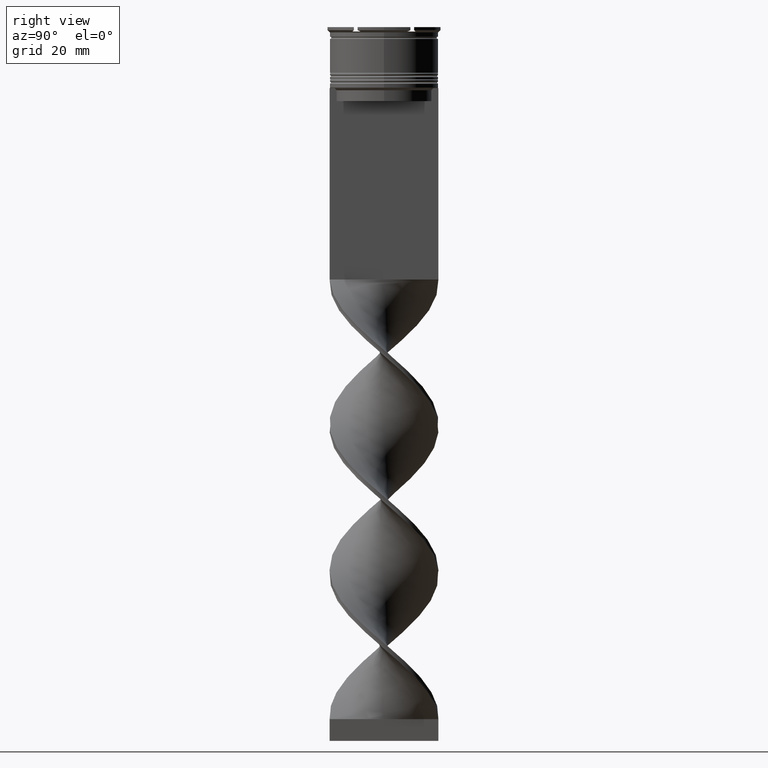
[diagram: clean part render]
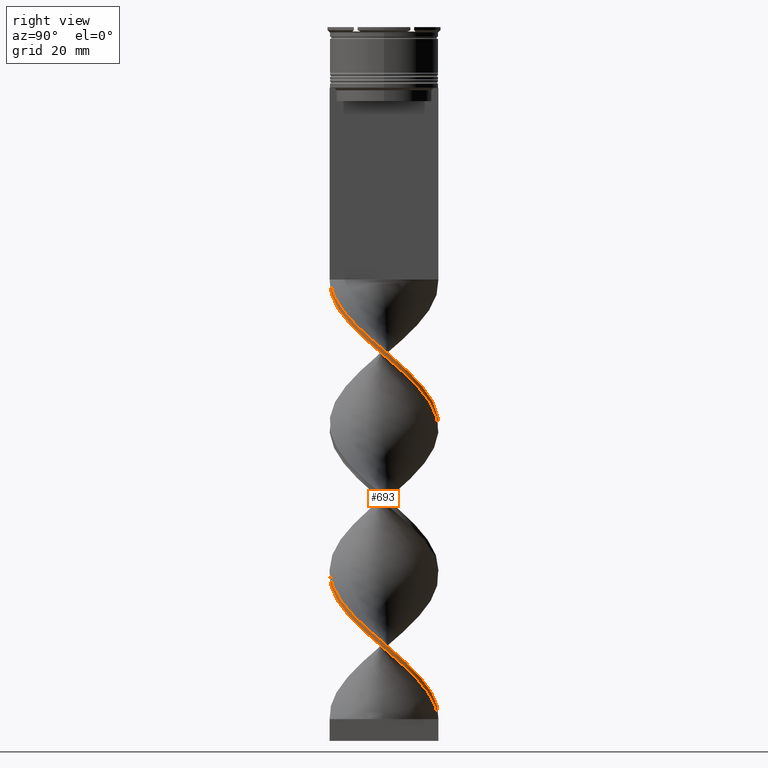
[diagram: same view with one face highlighted and labeled with its STEP entity id]
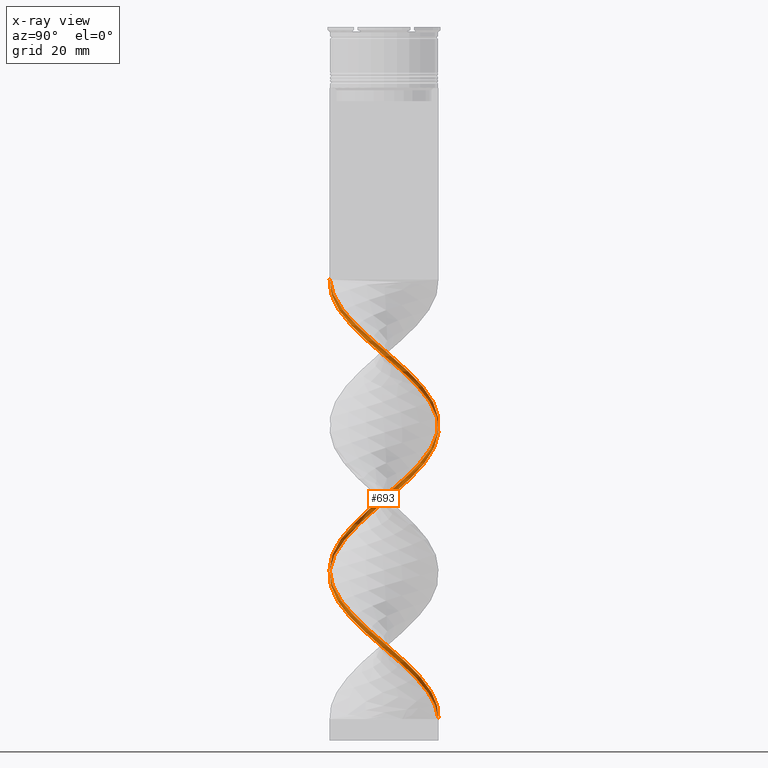
[diagram: x-ray of the same camera — body ghosted, the highlighted face saturated]
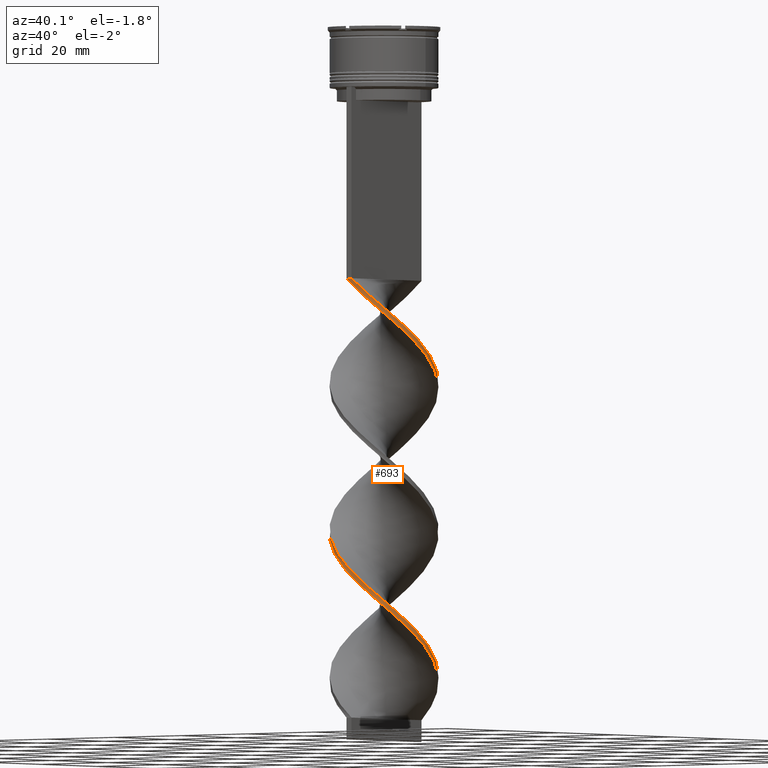
[diagram: same view with one face highlighted and labeled with its STEP entity id]
A machine part, right view. The second image highlights one B-rep face of the part: STEP entity #693.
The next image is the same camera in x-ray: the body ghosted, the highlighted face saturated — about 1% of this face is hidden behind the body in this view.
A second angle (auxiliary view) of the same face is appended — the face is thin or edge-on in the first view.
In plain terms, the highlighted face is a freeform B-spline surface patch.
Its self-contained STEP definition (entity closure, byte-faithful):
#4 = CARTESIAN_POINT ( 'NONE',  ( 12.35312734465267859, 2.052497212371872326, -75.95555555555554861 ) ) ;
#23 = CARTESIAN_POINT ( 'NONE',  ( 7.954078399437126023, 9.671873490467488566, -152.2666666666666799 ) ) ;
#30 = CARTESIAN_POINT ( 'NONE',  ( 1.865285434671642317, 12.38277877728589083, -89.42222222222223138 ) ) ;
#45 = VERTEX_POINT ( 'NONE', #186 ) ;
#47 = CARTESIAN_POINT ( 'NONE',  ( 12.13740119476140045, 3.350863215071107515, -77.07777777777778283 ) ) ;
#49 = CARTESIAN_POINT ( 'NONE',  ( 6.740552907874705291, 10.55355136890619860, -84.93333333333333712 ) ) ;
#63 = CARTESIAN_POINT ( 'NONE',  ( 6.937523532635171186, -10.50788081788356187, -63.61111111111112137 ) ) ;
#74 = CARTESIAN_POINT ( 'NONE',  ( 1.865285434671637432, -12.38277877728589260, -60.24444444444444713 ) ) ;
#82 = CARTESIAN_POINT ( 'NONE',  ( 2.063802940820955723, -12.42117182355074334, -126.4555555555555770 ) ) ;
#88 = CARTESIAN_POINT ( 'NONE',  ( 12.13740119476140045, 3.350863215071107515, -144.4111111111111541 ) ) ;
#106 = CARTESIAN_POINT ( 'NONE',  ( -1.865285434671644094, -12.38277877728589083, -123.0888888888888886 ) ) ;
#110 = CARTESIAN_POINT ( 'NONE',  ( 11.78895181437690276, -4.423280136619393232, -137.6777777777777487 ) ) ;
#119 = CARTESIAN_POINT ( 'NONE',  ( 12.45098658456435992, 1.875559948311562142, -77.07777777777778283 ) ) ;
#125 = CARTESIAN_POINT ( 'NONE',  ( -0.7499999999999986677, 12.50000000000000000, -91.66666666666667140 ) ) ;
#130 = CARTESIAN_POINT ( 'NONE',  ( -0.7499999999999986677, 12.50000000000000000, -159.0000000000000000 ) ) ;
#137 = CARTESIAN_POINT ( 'NONE',  ( 9.791158273236575837, 7.806773960377678456, -150.0222222222222115 ) ) ;
#138 = CARTESIAN_POINT ( 'NONE',  ( -4.399048945215547235, 11.72437070283936222, -96.15555555555556566 ) ) ;
#144 = CARTESIAN_POINT ( 'NONE',  ( 12.35312734465267859, 2.052497212371872326, -143.2888888888889198 ) ) ;
#152 = CARTESIAN_POINT ( 'NONE',  ( 3.166767928522319586, -12.18672937812252499, -61.36666666666666003 ) ) ;
#163 = CARTESIAN_POINT ( 'NONE',  ( 10.61168328023406460, 6.777681757703949650, -81.56666666666666288 ) ) ;
#169 = CARTESIAN_POINT ( 'NONE',  ( 0.5638029408209590532, 12.57882817644925844, -157.8777777777777942 ) ) ;
#175 = CARTESIAN_POINT ( 'NONE',  ( 7.849775853840622375, -9.845090710256195976, -133.1888888888889255 ) ) ;
#183 = CARTESIAN_POINT ( 'NONE',  ( 3.166767928522319586, -12.18672937812252322, -128.7000000000000171 ) ) ;
#186 = CARTESIAN_POINT ( 'NONE',  ( 0.7500000000000013323, 12.50000000000000000, -159.0000000000000000 ) ) ;
#192 = CARTESIAN_POINT ( 'NONE',  ( 0.5638029408209559445, -12.57882817644926021, -126.4555555555555628 ) ) ;
#201 = CARTESIAN_POINT ( 'NONE',  ( 11.78895181437690276, 4.423280136619390568, -79.32222222222222285 ) ) ;
#209 = CARTESIAN_POINT ( 'NONE',  ( 12.50992003955415832, 0.5607143693194618361, -143.2888888888889198 ) ) ;
#213 = EDGE_LOOP ( 'NONE', ( #2942, #1502, #2073, #4007 ) ) ;
#220 = CARTESIAN_POINT ( 'NONE',  ( 12.11996919947063311, 3.149420042465477021, -145.5333333333333599 ) ) ;
#228 = CARTESIAN_POINT ( 'NONE',  ( 10.61168328023406637, 6.777681757703949650, -148.8999999999999488 ) ) ;
#248 = CARTESIAN_POINT ( 'NONE',  ( -10.45031754730548101, 6.899519052838334332, -102.8888888888888857 ) ) ;
#282 = CARTESIAN_POINT ( 'NONE',  ( 0.7500000000000013323, 12.50000000000000000, -159.0000000000000000 ) ) ;
#295 = CARTESIAN_POINT ( 'NONE',  ( 12.50992003955415655, -0.5607143693194658329, -73.71111111111112280 ) ) ;
#310 = CARTESIAN_POINT ( 'NONE',  ( 0.7500000000000013323, 12.50000000000000000, -159.0000000000000000 ) ) ;
#316 = CARTESIAN_POINT ( 'NONE',  ( 7.954078399437126023, -9.671873490467488566, -64.73333333333333428 ) ) ;
#336 = CARTESIAN_POINT ( 'NONE',  ( -12.50992003955415832, 0.5607143693194728273, -107.3777777777777942 ) ) ;
#357 = CARTESIAN_POINT ( 'NONE',  ( -11.17548622105502254, -5.801146418745300792, -112.9888888888888943 ) ) ;
#362 = CARTESIAN_POINT ( 'NONE',  ( -9.791158273236570508, 7.806773960377685562, -100.6444444444444599 ) ) ;
#378 = CARTESIAN_POINT ( 'NONE',  ( -6.740552907874707067, -10.55355136890619860, -118.6000000000000085 ) ) ;
#385 = CARTESIAN_POINT ( 'NONE',  ( 0.7500000000000002220, -12.50000000000000000, -58.00000000000000000 ) ) ;
#399 = CARTESIAN_POINT ( 'NONE',  ( 3.332506835772345966, -12.07091124105925317, -60.24444444444444713 ) ) ;
#403 = CARTESIAN_POINT ( 'NONE',  ( 6.937523532635172074, -10.50788081788356187, -130.9444444444444287 ) ) ;
#419 = CARTESIAN_POINT ( 'NONE',  ( -10.45031754730548812, -6.899519052838321009, -114.1111111111111285 ) ) ;
#423 = CARTESIAN_POINT ( 'NONE',  ( -1.865285434671644094, -12.38277877728589083, -123.0888888888888886 ) ) ;
#437 = CARTESIAN_POINT ( 'NONE',  ( 2.063802940820959275, 12.42117182355074334, -90.54444444444445139 ) ) ;
#444 = CARTESIAN_POINT ( 'NONE',  ( 6.740552907874705291, 10.55355136890619860, -84.93333333333333712 ) ) ;
#449 = CARTESIAN_POINT ( 'NONE',  ( 9.791158273236570508, -7.806773960377682009, -134.3111111111111313 ) ) ;
#460 = CARTESIAN_POINT ( 'NONE',  ( 11.17548622105502076, -5.801146418745307898, -70.34444444444444855 ) ) ;
#468 = CARTESIAN_POINT ( 'NONE',  ( 7.954078399437126023, -9.671873490467488566, -132.0666666666666629 ) ) ;
#472 = CARTESIAN_POINT ( 'NONE',  ( -3.166767928522322251, -12.18672937812252499, -121.9666666666666544 ) ) ;
#478 = CARTESIAN_POINT ( 'NONE',  ( 3.332506835772350406, 12.07091124105925140, -156.7555555555555600 ) ) ;
#479 = CARTESIAN_POINT ( 'NONE',  ( 10.45031754730548279, -6.899519052838330779, -69.22222222222222854 ) ) ;
#489 = CARTESIAN_POINT ( 'NONE',  ( -4.399048945215561446, -11.72437070283935689, -120.8444444444444485 ) ) ;
#501 = CARTESIAN_POINT ( 'NONE',  ( 0.5638029408209559445, -12.57882817644925844, -126.4555555555555770 ) ) ;
#511 = CARTESIAN_POINT ( 'NONE',  ( -12.50992003955415832, -0.5607143693194575063, -109.6222222222222342 ) ) ;
#521 = CARTESIAN_POINT ( 'NONE',  ( -12.13740119476139867, 3.350863215071115508, -106.2555555555555742 ) ) ;
#529 = CARTESIAN_POINT ( 'NONE',  ( 8.787462363698281820, -8.921491198593773930, -134.3111111111111313 ) ) ;
#537 = CARTESIAN_POINT ( 'NONE',  ( 12.56885349454395495, -0.7541312096726379144, -142.1666666666666856 ) ) ;
#547 = CARTESIAN_POINT ( 'NONE',  ( 6.740552907874703514, -10.55355136890619860, -132.0666666666666629 ) ) ;
#570 = CARTESIAN_POINT ( 'NONE',  ( -11.78895181437690454, -4.423280136619386127, -112.9888888888888943 ) ) ;
#587 = CARTESIAN_POINT ( 'NONE',  ( -2.063802940820966381, -12.42117182355074334, -124.2111111111111370 ) ) ;
#605 = CARTESIAN_POINT ( 'NONE',  ( 4.399048945215554340, 11.72437070283936045, -87.17777777777779136 ) ) ;
#626 = CARTESIAN_POINT ( 'NONE',  ( 3.332506835772350406, 12.07091124105925140, -156.7555555555555600 ) ) ;
#627 = CARTESIAN_POINT ( 'NONE',  ( 2.063802940820955723, -12.42117182355074334, -59.12222222222222712 ) ) ;
#632 = CARTESIAN_POINT ( 'NONE',  ( -11.78895181437689743, 4.423280136619401226, -104.0111111111111200 ) ) ;
#653 = CARTESIAN_POINT ( 'NONE',  ( 8.787462363698287149, 8.921491198593770378, -82.68888888888889710 ) ) ;
#666 = CARTESIAN_POINT ( 'NONE',  ( 4.601210730723736653, -11.72065065856775767, -61.36666666666666003 ) ) ;
#670 = CARTESIAN_POINT ( 'NONE',  ( -12.56885349454395495, -0.7541312096726353609, -108.5000000000000000 ) ) ;
#689 = CARTESIAN_POINT ( 'NONE',  ( 9.725148873555948370, 7.997891686931350108, -81.56666666666666288 ) ) ;
#693 = ADVANCED_FACE ( 'NONE', ( #3245 ), #987, .T. ) ;
#712 = CARTESIAN_POINT ( 'NONE',  ( 12.45098658456436169, -1.875559948311565694, -72.58888888888890278 ) ) ;
#714 = CARTESIAN_POINT ( 'NONE',  ( 11.20031754730548457, 5.600480947161669221, -80.44444444444445708 ) ) ;
#727 = CARTESIAN_POINT ( 'NONE',  ( 6.937523532635171186, -10.50788081788356187, -130.9444444444444571 ) ) ;
#731 = CARTESIAN_POINT ( 'NONE',  ( -8.787462363698288925, -8.921491198593770378, -116.3555555555555685 ) ) ;
#750 = CARTESIAN_POINT ( 'NONE',  ( 11.65644370790820972, 4.576004816908207928, -78.20000000000000284 ) ) ;
#754 = CARTESIAN_POINT ( 'NONE',  ( 0.5638029408209559445, -12.57882817644926021, -59.12222222222222712 ) ) ;
#769 = CARTESIAN_POINT ( 'NONE',  ( -6.937523532635175627, -10.50788081788355832, -119.7222222222222143 ) ) ;
#781 = CARTESIAN_POINT ( 'NONE',  ( 11.65644370790820794, -4.576004816908208817, -71.46666666666668277 ) ) ;
#790 = CARTESIAN_POINT ( 'NONE',  ( -3.166767928522318254, 12.18672937812252499, -95.03333333333331723 ) ) ;
#796 = CARTESIAN_POINT ( 'NONE',  ( 9.725148873555946594, 7.997891686931350996, -148.8999999999999488 ) ) ;
#805 = CARTESIAN_POINT ( 'NONE',  ( 9.791158273236575837, 7.806773960377678456, -82.68888888888889710 ) ) ;
#817 = CARTESIAN_POINT ( 'NONE',  ( 11.17548622105502254, -5.801146418745307010, -137.6777777777777487 ) ) ;
#830 = CARTESIAN_POINT ( 'NONE',  ( 12.13740119476140045, -3.350863215071111068, -72.58888888888890278 ) ) ;
#835 = CARTESIAN_POINT ( 'NONE',  ( 11.78895181437690276, -4.423280136619393232, -137.6777777777777487 ) ) ;
#841 = CARTESIAN_POINT ( 'NONE',  ( 5.769367131679455696, 11.11426573822565977, -87.17777777777779136 ) ) ;
#850 = CARTESIAN_POINT ( 'NONE',  ( -11.78895181437690454, -4.423280136619386127, -112.9888888888888943 ) ) ;
#859 = CARTESIAN_POINT ( 'NONE',  ( 5.631329961908785542, -11.26201202755620123, -130.9444444444444287 ) ) ;
#867 = CARTESIAN_POINT ( 'NONE',  ( 12.11996919947063134, -3.149420042465478353, -71.46666666666668277 ) ) ;
#869 = CARTESIAN_POINT ( 'NONE',  ( 12.35312734465267681, -2.052497212371875435, -141.0444444444444514 ) ) ;
#879 = CARTESIAN_POINT ( 'NONE',  ( -9.791158273236577614, -7.806773960377676680, -116.3555555555555685 ) ) ;
#902 = CARTESIAN_POINT ( 'NONE',  ( -8.970633266239085302, -8.835866163051408151, -117.4777777777777885 ) ) ;
#912 = CARTESIAN_POINT ( 'NONE',  ( 0.7500000000000002220, -12.50000000000000000, -58.00000000000000000 ) ) ;
#939 = CARTESIAN_POINT ( 'NONE',  ( -3.332506835772342857, 12.07091124105925317, -93.91111111111111143 ) ) ;
#963 = CARTESIAN_POINT ( 'NONE',  ( 4.601210730723737541, -11.72065065856775945, -61.36666666666666003 ) ) ;
#980 = CARTESIAN_POINT ( 'NONE',  ( -5.769367131679449479, 11.11426573822566333, -96.15555555555556566 ) ) ;
#987 =( BOUNDED_SURFACE ( )  B_SPLINE_SURFACE ( 1, 2, ( 
 ( #385, #1602, #2447, #963, #2524, #1648, #316, #2199, #2923, #1584, #3219, #3730, #867, #2573, #295, #3805, #4, #2880, #2126, #1005, #3515, #3490, #653, #1265, #49, #2858, #605, #2548, #30, #3827, #1870, #3153, #939, #1290, #1569, #2835, #1630, #1911, #362, #3197, #3534, #632, #1895, #3853, #336, #670, #1930, #2905, #1311, #2591, #3877, #2266, #731, #3939, #2985, #3283, #489, #472, #423, #1977, #2692, #2608, #3263, #2966, #2353, #403, #3003, #1062, #449, #1665, #1689, #110, #3644, #3664, #1712, #1329, #2324, #88, #2374, #1992, #1043, #796, #1375, #2036, #2055, #3027, #1398, #2943, #1351, #2647, #130 ),
 ( #2307, #754, #2013, #152, #3309, #3344, #2668, #3960, #1083, #1750, #3898, #2627, #781, #1025, #2289, #1730, #1417, #3986, #1107, #3578, #714, #3921, #3597, #2481, #1124, #3741, #841, #3722, #4004, #1830, #3389, #2752, #1786, #2098, #1479, #3113, #2414, #1520, #4046, #3763, #248, #2786, #3372, #4081, #1809, #1167, #511, #1769, #1503, #570, #3449, #2712, #879, #902, #3049, #1203, #2440, #2139, #2160, #587, #2731, #192, #3066, #3702, #1459, #859, #547, #175, #529, #3089, #3680, #817, #1845, #1441, #4018, #2391, #209, #2077, #3407, #1144, #2119, #228, #2772, #4066, #1184, #2459, #3430, #1579, #626, #3800, #310 ) ),
 .UNSPECIFIED., .F., .F., .T. ) 
 B_SPLINE_SURFACE_WITH_KNOTS ( ( 2, 2 ),
 ( 3, 2, 2, 2, 2, 2, 2, 2, 2, 2, 2, 2, 2, 2, 2, 2, 2, 2, 2, 2, 2, 2, 2, 2, 2, 2, 2, 2, 2, 2, 2, 2, 2, 2, 2, 2, 2, 2, 2, 2, 2, 2, 2, 2, 2, 3 ),
 ( 0.000000000000000000, 1.000000000000000000 ),
 ( 0.000000000000000000, 0.01666666666666666644, 0.03333333333333333287, 0.05000000000000000278, 0.06666666666666666574, 0.08333333333333332871, 0.1000000000000000056, 0.1166666666666666685, 0.1333333333333333315, 0.1499999999999999944, 0.1666666666666666574, 0.1833333333333333204, 0.2000000000000000111, 0.2166666666666666741, 0.2333333333333333370, 0.2500000000000000000, 0.2666666666666666630, 0.2833333333333333259, 0.2999999999999999889, 0.3166666666666666519, 0.3333333333333333148, 0.3499999999999999778, 0.3666666666666666408, 0.3833333333333333592, 0.4000000000000000222, 0.4166666666666666852, 0.4333333333333333481, 0.4500000000000000111, 0.4666666666666666741, 0.4833333333333333370, 0.5000000000000000000, 0.5166666666666667185, 0.5333333333333333259, 0.5500000000000000444, 0.5666666666666666519, 0.5833333333333333703, 0.5999999999999999778, 0.6166666666666666963, 0.6333333333333333037, 0.6500000000000000222, 0.6666666666666666297, 0.6833333333333333481, 0.6999999999999999556, 0.7166666666666666741, 0.7333333333333332815, 0.7500000000000000000 ),
 .UNSPECIFIED. ) 
 GEOMETRIC_REPRESENTATION_ITEM ( )  RATIONAL_B_SPLINE_SURFACE ( (
 ( 1.000000000000000000, 0.9945218953682732899, 1.000000000000000000, 0.9945218953682732899, 1.000000000000000000, 0.9945218953682732899, 1.000000000000000000, 0.9945218953682732899, 1.000000000000000000, 0.9945218953682732899, 1.000000000000000000, 0.9945218953682732899, 1.000000000000000000, 0.9945218953682732899, 1.000000000000000000, 0.9945218953682732899, 1.000000000000000000, 0.9945218953682732899, 1.000000000000000000, 0.9945218953682732899, 1.000000000000000000, 0.9945218953682732899, 1.000000000000000000, 0.9945218953682732899, 1.000000000000000000, 0.9945218953682732899, 1.000000000000000000, 0.9945218953682732899, 1.000000000000000000, 0.9945218953682732899, 1.000000000000000000, 0.9945218953682732899, 1.000000000000000000, 0.9945218953682732899, 1.000000000000000000, 0.9945218953682732899, 1.000000000000000000, 0.9945218953682732899, 1.000000000000000000, 0.9945218953682732899, 1.000000000000000000, 0.9945218953682732899, 1.000000000000000000, 0.9945218953682732899, 1.000000000000000000, 0.9945218953682732899, 1.000000000000000000, 0.9945218953682732899, 1.000000000000000000, 0.9945218953682732899, 1.000000000000000000, 0.9945218953682732899, 1.000000000000000000, 0.9945218953682732899, 1.000000000000000000, 0.9945218953682732899, 1.000000000000000000, 0.9945218953682732899, 1.000000000000000000, 0.9945218953682732899, 1.000000000000000000, 0.9945218953682732899, 1.000000000000000000, 0.9945218953682732899, 1.000000000000000000, 0.9945218953682732899, 1.000000000000000000, 0.9945218953682732899, 1.000000000000000000, 0.9945218953682732899, 1.000000000000000000, 0.9945218953682732899, 1.000000000000000000, 0.9945218953682732899, 1.000000000000000000, 0.9945218953682732899, 1.000000000000000000, 0.9945218953682732899, 1.000000000000000000, 0.9945218953682732899, 1.000000000000000000, 0.9945218953682732899, 1.000000000000000000, 0.9945218953682732899, 1.000000000000000000, 0.9945218953682732899, 1.000000000000000000, 0.9945218953682732899, 1.000000000000000000, 0.9945218953682732899, 1.000000000000000000),
 ( 1.000000000000000000, 0.9945218953682732899, 1.000000000000000000, 0.9945218953682732899, 1.000000000000000000, 0.9945218953682732899, 1.000000000000000000, 0.9945218953682732899, 1.000000000000000000, 0.9945218953682732899, 1.000000000000000000, 0.9945218953682732899, 1.000000000000000000, 0.9945218953682732899, 1.000000000000000000, 0.9945218953682732899, 1.000000000000000000, 0.9945218953682732899, 1.000000000000000000, 0.9945218953682732899, 1.000000000000000000, 0.9945218953682732899, 1.000000000000000000, 0.9945218953682732899, 1.000000000000000000, 0.9945218953682732899, 1.000000000000000000, 0.9945218953682732899, 1.000000000000000000, 0.9945218953682732899, 1.000000000000000000, 0.9945218953682732899, 1.000000000000000000, 0.9945218953682732899, 1.000000000000000000, 0.9945218953682732899, 1.000000000000000000, 0.9945218953682732899, 1.000000000000000000, 0.9945218953682732899, 1.000000000000000000, 0.9945218953682732899, 1.000000000000000000, 0.9945218953682732899, 1.000000000000000000, 0.9945218953682732899, 1.000000000000000000, 0.9945218953682732899, 1.000000000000000000, 0.9945218953682732899, 1.000000000000000000, 0.9945218953682732899, 1.000000000000000000, 0.9945218953682732899, 1.000000000000000000, 0.9945218953682732899, 1.000000000000000000, 0.9945218953682732899, 1.000000000000000000, 0.9945218953682732899, 1.000000000000000000, 0.9945218953682732899, 1.000000000000000000, 0.9945218953682732899, 1.000000000000000000, 0.9945218953682732899, 1.000000000000000000, 0.9945218953682732899, 1.000000000000000000, 0.9945218953682732899, 1.000000000000000000, 0.9945218953682732899, 1.000000000000000000, 0.9945218953682732899, 1.000000000000000000, 0.9945218953682732899, 1.000000000000000000, 0.9945218953682732899, 1.000000000000000000, 0.9945218953682732899, 1.000000000000000000, 0.9945218953682732899, 1.000000000000000000, 0.9945218953682732899, 1.000000000000000000, 0.9945218953682732899, 1.000000000000000000, 0.9945218953682732899, 1.000000000000000000, 0.9945218953682732899, 1.000000000000000000) ) ) 
 REPRESENTATION_ITEM ( '' )  SURFACE ( )  );
#989 = LINE ( 'NONE', #912, #1886 ) ;
#1001 = CARTESIAN_POINT ( 'NONE',  ( -10.61168328023406460, 6.777681757703952314, -101.7666666666666515 ) ) ;
#1005 = CARTESIAN_POINT ( 'NONE',  ( 11.17548622105502254, 5.801146418745304345, -79.32222222222222285 ) ) ;
#1022 = CARTESIAN_POINT ( 'NONE',  ( -6.937523532635168522, 10.50788081788356365, -97.27777777777779988 ) ) ;
#1025 = CARTESIAN_POINT ( 'NONE',  ( 12.13740119476140045, -3.350863215071111068, -72.58888888888890278 ) ) ;
#1039 = CARTESIAN_POINT ( 'NONE',  ( -4.399048945215561446, -11.72437070283935689, -120.8444444444444485 ) ) ;
#1043 = CARTESIAN_POINT ( 'NONE',  ( 10.45031754730548457, 6.899519052838327227, -147.7777777777777715 ) ) ;
#1056 = CARTESIAN_POINT ( 'NONE',  ( 12.56885349454395495, 0.7541312096726368042, -74.83333333333332860 ) ) ;
#1062 = CARTESIAN_POINT ( 'NONE',  ( 8.970633266239079973, -8.835866163051415256, -133.1888888888889255 ) ) ;
#1070 = CARTESIAN_POINT ( 'NONE',  ( -7.954078399437126912, -9.671873490467486789, -118.6000000000000085 ) ) ;
#1071 = VERTEX_POINT ( 'NONE', #3614 ) ;
#1078 = CARTESIAN_POINT ( 'NONE',  ( 9.791158273236570508, -7.806773960377682009, -134.3111111111111313 ) ) ;
#1083 = CARTESIAN_POINT ( 'NONE',  ( 8.787462363698281820, -8.921491198593773930, -66.97777777777777430 ) ) ;
#1095 = CARTESIAN_POINT ( 'NONE',  ( 6.937523532635174739, 10.50788081788355832, -153.3888888888889142 ) ) ;
#1096 = CARTESIAN_POINT ( 'NONE',  ( 11.20031754730548457, 5.600480947161669221, -80.44444444444445708 ) ) ;
#1107 = CARTESIAN_POINT ( 'NONE',  ( 12.11996919947063311, 3.149420042465477021, -78.20000000000000284 ) ) ;
#1115 = CARTESIAN_POINT ( 'NONE',  ( -12.56885349454395495, 0.7541312096726393577, -108.5000000000000000 ) ) ;
#1124 = CARTESIAN_POINT ( 'NONE',  ( 7.954078399437126023, 9.671873490467488566, -84.93333333333333712 ) ) ;
#1132 = CARTESIAN_POINT ( 'NONE',  ( 6.740552907874703514, -10.55355136890619860, -132.0666666666666629 ) ) ;
#1144 = CARTESIAN_POINT ( 'NONE',  ( 11.78895181437690276, 4.423280136619390568, -146.6555555555555657 ) ) ;
#1155 = CARTESIAN_POINT ( 'NONE',  ( -5.631329961908782877, 11.26201202755620479, -97.27777777777779988 ) ) ;
#1159 = CARTESIAN_POINT ( 'NONE',  ( 8.970633266239079973, -8.835866163051415256, -133.1888888888889255 ) ) ;
#1167 = CARTESIAN_POINT ( 'NONE',  ( -12.56885349454395495, 0.7541312096726394687, -108.5000000000000000 ) ) ;
#1176 = CARTESIAN_POINT ( 'NONE',  ( 11.78895181437690276, 4.423280136619390568, -146.6555555555555657 ) ) ;
#1178 = B_SPLINE_CURVE_WITH_KNOTS ( 'NONE', 3,
 ( #3781, #4124, #2174, #282 ),
 .UNSPECIFIED., .F., .F.,
 ( 4, 4 ),
 ( 0.000000000000000000, 1.000000000000000000 ),
 .UNSPECIFIED. ) ;
#1184 = CARTESIAN_POINT ( 'NONE',  ( 7.954078399437126023, 9.671873490467488566, -152.2666666666666799 ) ) ;
#1203 = CARTESIAN_POINT ( 'NONE',  ( -6.937523532635176515, -10.50788081788355832, -119.7222222222222143 ) ) ;
#1265 = CARTESIAN_POINT ( 'NONE',  ( 7.849775853840625039, 9.845090710256194200, -83.81111111111111711 ) ) ;
#1290 = CARTESIAN_POINT ( 'NONE',  ( -4.601210730723735765, 11.72065065856776123, -95.03333333333331723 ) ) ;
#1299 = EDGE_CURVE ( 'NONE', #1532, #45, #1178, .T. ) ;
#1308 = CARTESIAN_POINT ( 'NONE',  ( -2.063802940820951726, 12.42117182355074689, -92.78888888888889142 ) ) ;
#1311 = CARTESIAN_POINT ( 'NONE',  ( -11.65644370790820972, -4.576004816908206152, -111.8666666666666742 ) ) ;
#1325 = CARTESIAN_POINT ( 'NONE',  ( -0.5638029408209662696, -12.57882817644925844, -124.2111111111111370 ) ) ;
#1329 = CARTESIAN_POINT ( 'NONE',  ( 12.56885349454395495, 0.7541312096726368042, -142.1666666666666856 ) ) ;
#1338 = CARTESIAN_POINT ( 'NONE',  ( 3.166767928522319586, -12.18672937812252322, -61.36666666666666003 ) ) ;
#1345 = CARTESIAN_POINT ( 'NONE',  ( 3.332506835772345966, -12.07091124105925317, -127.5777777777777828 ) ) ;
#1351 = CARTESIAN_POINT ( 'NONE',  ( 1.865285434671642317, 12.38277877728589083, -156.7555555555555600 ) ) ;
#1371 = CARTESIAN_POINT ( 'NONE',  ( 1.865285434671642317, 12.38277877728589083, -89.42222222222223138 ) ) ;
#1375 = CARTESIAN_POINT ( 'NONE',  ( 8.787462363698287149, 8.921491198593770378, -150.0222222222222115 ) ) ;
#1386 = CARTESIAN_POINT ( 'NONE',  ( -10.61168328023406637, -6.777681757703947873, -115.2333333333333343 ) ) ;
#1394 = CARTESIAN_POINT ( 'NONE',  ( -12.56885349454395495, -0.7541312096726352499, -108.5000000000000000 ) ) ;
#1398 = CARTESIAN_POINT ( 'NONE',  ( 4.399048945215554340, 11.72437070283936045, -154.5111111111111200 ) ) ;
#1407 = CARTESIAN_POINT ( 'NONE',  ( 8.970633266239079973, 8.835866163051411704, -151.1444444444444457 ) ) ;
#1408 = CARTESIAN_POINT ( 'NONE',  ( -8.787462363698281820, 8.921491198593777483, -100.6444444444444599 ) ) ;
#1417 = CARTESIAN_POINT ( 'NONE',  ( 12.50992003955415832, 0.5607143693194618361, -75.95555555555554861 ) ) ;
#1428 = CARTESIAN_POINT ( 'NONE',  ( 11.20031754730548457, 5.600480947161669221, -147.7777777777777715 ) ) ;
#1429 = CARTESIAN_POINT ( 'NONE',  ( -11.65644370790820794, 4.576004816908209705, -105.1333333333333400 ) ) ;
#1435 = CARTESIAN_POINT ( 'NONE',  ( 11.20031754730548279, -5.600480947161672773, -136.5555555555555713 ) ) ;
#1441 = CARTESIAN_POINT ( 'NONE',  ( 12.13740119476140045, -3.350863215071111068, -139.9222222222222172 ) ) ;
#1450 = CARTESIAN_POINT ( 'NONE',  ( 4.399048945215551676, -11.72437070283936222, -129.8222222222222229 ) ) ;
#1459 = CARTESIAN_POINT ( 'NONE',  ( 4.399048945215551676, -11.72437070283936222, -129.8222222222222229 ) ) ;
#1468 = CARTESIAN_POINT ( 'NONE',  ( -1.865285434671634324, 12.38277877728589260, -93.91111111111111143 ) ) ;
#1472 = CARTESIAN_POINT ( 'NONE',  ( 12.45098658456436169, -1.875559948311565694, -139.9222222222222172 ) ) ;
#1479 = CARTESIAN_POINT ( 'NONE',  ( -4.399048945215547235, 11.72437070283936222, -96.15555555555556566 ) ) ;
#1490 = CARTESIAN_POINT ( 'NONE',  ( 12.45098658456435992, 1.875559948311562142, -144.4111111111111256 ) ) ;
#1502 = ORIENTED_EDGE ( 'NONE', *, *, #4118, .T. ) ;
#1503 = CARTESIAN_POINT ( 'NONE',  ( -12.11996919947063311, -3.149420042465475689, -111.8666666666666742 ) ) ;
#1520 = CARTESIAN_POINT ( 'NONE',  ( -7.849775853840618822, 9.845090710256195976, -99.52222222222223991 ) ) ;
#1532 = VERTEX_POINT ( 'NONE', #1861 ) ;
#1569 = CARTESIAN_POINT ( 'NONE',  ( -5.769367131679449479, 11.11426573822566333, -96.15555555555556566 ) ) ;
#1579 = CARTESIAN_POINT ( 'NONE',  ( 4.601210730723739317, 11.72065065856775945, -155.6333333333333258 ) ) ;
#1584 = CARTESIAN_POINT ( 'NONE',  ( 10.61168328023406815, -6.777681757703950538, -68.10000000000002274 ) ) ;
#1602 = CARTESIAN_POINT ( 'NONE',  ( 2.063802940820956167, -12.42117182355074334, -59.12222222222222712 ) ) ;
#1623 = CARTESIAN_POINT ( 'NONE',  ( -9.725148873555948370, -7.997891686931350108, -115.2333333333333343 ) ) ;
#1630 = CARTESIAN_POINT ( 'NONE',  ( -7.954078399437124247, 9.671873490467490342, -98.40000000000001990 ) ) ;
#1644 = CARTESIAN_POINT ( 'NONE',  ( 9.791158273236570508, -7.806773960377682009, -66.97777777777777430 ) ) ;
#1648 = CARTESIAN_POINT ( 'NONE',  ( 6.937523532635172074, -10.50788081788356187, -63.61111111111111427 ) ) ;
#1661 = CARTESIAN_POINT ( 'NONE',  ( -5.631329961908790871, -11.26201202755619946, -119.7222222222222143 ) ) ;
#1665 = CARTESIAN_POINT ( 'NONE',  ( 10.61168328023406815, -6.777681757703950538, -135.4333333333333371 ) ) ;
#1683 = CARTESIAN_POINT ( 'NONE',  ( -8.970633266239076420, 8.835866163051417033, -99.52222222222223991 ) ) ;
#1689 = CARTESIAN_POINT ( 'NONE',  ( 11.20031754730548279, -5.600480947161672773, -136.5555555555555713 ) ) ;
#1703 = CARTESIAN_POINT ( 'NONE',  ( -7.849775853840619710, 9.845090710256194200, -99.52222222222223991 ) ) ;
#1709 = CARTESIAN_POINT ( 'NONE',  ( -9.791158273236570508, 7.806773960377685562, -100.6444444444444599 ) ) ;
#1712 = CARTESIAN_POINT ( 'NONE',  ( 12.50992003955415655, -0.5607143693194658329, -141.0444444444444514 ) ) ;
#1719 = CARTESIAN_POINT ( 'NONE',  ( -0.5638029408209508375, 12.57882817644926199, -92.78888888888889142 ) ) ;
#1726 = CARTESIAN_POINT ( 'NONE',  ( 10.61168328023406637, -6.777681757703950538, -135.4333333333333371 ) ) ;
#1730 = CARTESIAN_POINT ( 'NONE',  ( 12.56885349454395495, -0.7541312096726379144, -74.83333333333334281 ) ) ;
#1737 = CARTESIAN_POINT ( 'NONE',  ( 6.937523532635174739, 10.50788081788355832, -86.05555555555557135 ) ) ;
#1743 = CARTESIAN_POINT ( 'NONE',  ( 12.13740119476140045, 3.350863215071107515, -144.4111111111111256 ) ) ;
#1750 = CARTESIAN_POINT ( 'NONE',  ( 9.725148873555946594, -7.997891686931353661, -68.10000000000002274 ) ) ;
#1760 = CARTESIAN_POINT ( 'NONE',  ( -12.45098658456436169, -1.875559948311554592, -110.7444444444444542 ) ) ;
#1769 = CARTESIAN_POINT ( 'NONE',  ( -12.45098658456436169, -1.875559948311554814, -110.7444444444444542 ) ) ;
#1777 = CARTESIAN_POINT ( 'NONE',  ( 6.740552907874703514, -10.55355136890619860, -64.73333333333333428 ) ) ;
#1786 = CARTESIAN_POINT ( 'NONE',  ( -1.865285434671634324, 12.38277877728589260, -93.91111111111111143 ) ) ;
#1799 = CARTESIAN_POINT ( 'NONE',  ( 11.17548622105502076, -5.801146418745307898, -137.6777777777777487 ) ) ;
#1809 = CARTESIAN_POINT ( 'NONE',  ( -12.35312734465267503, 2.052497212371882540, -107.3777777777777942 ) ) ;
#1830 = CARTESIAN_POINT ( 'NONE',  ( 2.063802940820959275, 12.42117182355074334, -90.54444444444445139 ) ) ;
#1845 = CARTESIAN_POINT ( 'NONE',  ( 11.65644370790820794, -4.576004816908208817, -138.8000000000000114 ) ) ;
#1861 = CARTESIAN_POINT ( 'NONE',  ( -0.7499999999999986677, 12.50000000000000000, -159.0000000000000000 ) ) ;
#1870 = CARTESIAN_POINT ( 'NONE',  ( -0.7499999999999986677, 12.50000000000000000, -91.66666666666667140 ) ) ;
#1886 = VECTOR ( 'NONE', #2840, 1000.000000000000000 ) ;
#1895 = CARTESIAN_POINT ( 'NONE',  ( -12.11996919947063134, 3.149420042465479241, -105.1333333333333400 ) ) ;
#1911 = CARTESIAN_POINT ( 'NONE',  ( -8.970633266239076420, 8.835866163051417033, -99.52222222222223991 ) ) ;
#1924 = CARTESIAN_POINT ( 'NONE',  ( 5.769367131679455696, 11.11426573822565977, -154.5111111111111200 ) ) ;
#1926 = CARTESIAN_POINT ( 'NONE',  ( -11.78895181437689743, 4.423280136619400338, -104.0111111111111057 ) ) ;
#1930 = CARTESIAN_POINT ( 'NONE',  ( -12.35312734465267859, -2.052497212371867885, -109.6222222222222342 ) ) ;
#1945 = VERTEX_POINT ( 'NONE', #3351 ) ;
#1950 = CARTESIAN_POINT ( 'NONE',  ( -7.849775853840630369, -9.845090710256188871, -117.4777777777777885 ) ) ;
#1966 = CARTESIAN_POINT ( 'NONE',  ( 0.5638029408209559445, -12.57882817644925844, -59.12222222222222712 ) ) ;
#1972 = CARTESIAN_POINT ( 'NONE',  ( 10.45031754730548457, 6.899519052838327227, -80.44444444444445708 ) ) ;
#1977 = CARTESIAN_POINT ( 'NONE',  ( -0.5638029408209662696, -12.57882817644926021, -124.2111111111111370 ) ) ;
#1989 = CARTESIAN_POINT ( 'NONE',  ( -12.45098658456436169, 1.875559948311569913, -106.2555555555555742 ) ) ;
#1992 = CARTESIAN_POINT ( 'NONE',  ( 11.17548622105502254, 5.801146418745304345, -146.6555555555555657 ) ) ;
#2001 = CARTESIAN_POINT ( 'NONE',  ( 0.7500000000000013323, 12.50000000000000000, -159.0000000000000000 ) ) ;
#2009 = CARTESIAN_POINT ( 'NONE',  ( 8.787462363698287149, 8.921491198593770378, -82.68888888888889710 ) ) ;
#2013 = CARTESIAN_POINT ( 'NONE',  ( 1.865285434671637432, -12.38277877728589260, -60.24444444444444713 ) ) ;
#2024 = CARTESIAN_POINT ( 'NONE',  ( -5.769367131679462801, -11.11426573822565622, -120.8444444444444485 ) ) ;
#2031 = CARTESIAN_POINT ( 'NONE',  ( 8.787462363698287149, 8.921491198593770378, -150.0222222222222115 ) ) ;
#2036 = CARTESIAN_POINT ( 'NONE',  ( 7.849775853840625039, 9.845090710256194200, -151.1444444444444457 ) ) ;
#2046 = CARTESIAN_POINT ( 'NONE',  ( -10.45031754730548101, 6.899519052838334332, -102.8888888888888857 ) ) ;
#2052 = CARTESIAN_POINT ( 'NONE',  ( 5.631329961908789983, 11.26201202755619946, -153.3888888888889142 ) ) ;
#2055 = CARTESIAN_POINT ( 'NONE',  ( 6.740552907874705291, 10.55355136890619860, -152.2666666666666799 ) ) ;
#2066 = CARTESIAN_POINT ( 'NONE',  ( 3.332506835772350406, 12.07091124105925140, -89.42222222222223138 ) ) ;
#2073 = ORIENTED_EDGE ( 'NONE', *, *, #1299, .F. ) ;
#2077 = CARTESIAN_POINT ( 'NONE',  ( 12.45098658456435992, 1.875559948311562142, -144.4111111111111541 ) ) ;
#2089 = CARTESIAN_POINT ( 'NONE',  ( 12.56885349454395495, -0.7541312096726379144, -74.83333333333332860 ) ) ;
#2094 = CARTESIAN_POINT ( 'NONE',  ( 11.17548622105502076, 5.801146418745305233, -146.6555555555555657 ) ) ;
#2098 = CARTESIAN_POINT ( 'NONE',  ( -3.166767928522318254, 12.18672937812252677, -95.03333333333331723 ) ) ;
#2109 = CARTESIAN_POINT ( 'NONE',  ( -12.50992003955415832, -0.5607143693194575063, -109.6222222222222342 ) ) ;
#2112 = CARTESIAN_POINT ( 'NONE',  ( 10.45031754730548457, 6.899519052838327227, -147.7777777777777715 ) ) ;
#2119 = CARTESIAN_POINT ( 'NONE',  ( 11.20031754730548457, 5.600480947161669221, -147.7777777777777715 ) ) ;
#2126 = CARTESIAN_POINT ( 'NONE',  ( 11.65644370790820972, 4.576004816908207928, -78.20000000000000284 ) ) ;
#2139 = CARTESIAN_POINT ( 'NONE',  ( -4.601210730723740205, -11.72065065856775945, -121.9666666666666544 ) ) ;
#2160 = CARTESIAN_POINT ( 'NONE',  ( -3.332506835772352183, -12.07091124105925140, -123.0888888888888886 ) ) ;
#2174 = CARTESIAN_POINT ( 'NONE',  ( 0.2500000000000013323, 12.50000000000000000, -159.0000000000000000 ) ) ;
#2199 = CARTESIAN_POINT ( 'NONE',  ( 8.970633266239079973, -8.835866163051415256, -65.85555555555555429 ) ) ;
#2239 = CARTESIAN_POINT ( 'NONE',  ( 4.399048945215554340, 11.72437070283936045, -87.17777777777779136 ) ) ;
#2259 = CARTESIAN_POINT ( 'NONE',  ( -11.65644370790820972, -4.576004816908206152, -111.8666666666666742 ) ) ;
#2266 = CARTESIAN_POINT ( 'NONE',  ( -9.725148873555948370, -7.997891686931350996, -115.2333333333333343 ) ) ;
#2283 = CARTESIAN_POINT ( 'NONE',  ( 10.61168328023406637, -6.777681757703950538, -68.10000000000000853 ) ) ;
#2289 = CARTESIAN_POINT ( 'NONE',  ( 12.35312734465267681, -2.052497212371875435, -73.71111111111112280 ) ) ;
#2303 = CARTESIAN_POINT ( 'NONE',  ( 4.601210730723736653, -11.72065065856775767, -128.7000000000000171 ) ) ;
#2307 = CARTESIAN_POINT ( 'NONE',  ( -0.7499999999999997780, -12.50000000000000000, -58.00000000000000000 ) ) ;
#2321 = CARTESIAN_POINT ( 'NONE',  ( 12.11996919947063134, -3.149420042465478353, -71.46666666666668277 ) ) ;
#2324 = CARTESIAN_POINT ( 'NONE',  ( 12.35312734465267859, 2.052497212371872326, -143.2888888888889198 ) ) ;
#2338 = CARTESIAN_POINT ( 'NONE',  ( 8.970633266239079973, 8.835866163051411704, -83.81111111111111711 ) ) ;
#2353 = CARTESIAN_POINT ( 'NONE',  ( 5.769367131679453031, -11.11426573822566155, -129.8222222222222229 ) ) ;
#2366 = CARTESIAN_POINT ( 'NONE',  ( 9.725148873555948370, -7.997891686931351884, -68.10000000000000853 ) ) ;
#2374 = CARTESIAN_POINT ( 'NONE',  ( 11.65644370790820972, 4.576004816908207928, -145.5333333333333599 ) ) ;
#2381 = CARTESIAN_POINT ( 'NONE',  ( 2.063802940820959275, 12.42117182355074334, -157.8777777777777942 ) ) ;
#2382 = CARTESIAN_POINT ( 'NONE',  ( -12.35312734465267503, 2.052497212371882540, -107.3777777777777942 ) ) ;
#2391 = CARTESIAN_POINT ( 'NONE',  ( 12.56885349454395495, -0.7541312096726379144, -142.1666666666666856 ) ) ;
#2402 = CARTESIAN_POINT ( 'NONE',  ( -3.332506835772352183, -12.07091124105925140, -123.0888888888888886 ) ) ;
#2414 = CARTESIAN_POINT ( 'NONE',  ( -6.740552907874702626, 10.55355136890619860, -98.40000000000001990 ) ) ;
#2421 =( BOUNDED_CURVE ( )  B_SPLINE_CURVE ( 2, ( #3486, #627, #399, #666, #2644, #63, #3574, #2603, #1644, #2283, #3935, #3241, #2321, #712, #3302, #1056, #3613, #47, #750, #2622, #1972, #689, #2009, #3893, #444, #3529, #2239, #2587, #1371, #2961, #125, #1308, #3258, #2982, #980, #1022, #3550, #1683, #1709, #1001, #3917, #1926, #3874, #1989, #3277, #1394, #2663, #3214, #2259, #357, #419, #1623, #2900, #1950, #378, #1661, #1039, #2920, #106, #1325, #2938, #82, #1345, #2303, #3592, #727, #468, #1159, #1078, #1726, #1435, #835, #2999, #1472, #3676, #3044, #144, #1743, #2707, #2094, #2112, #2746, #2031, #4038, #3639, #2052, #2435, #3717, #3324, #169, #3060 ),
 .UNSPECIFIED., .F., .T. ) 
 B_SPLINE_CURVE_WITH_KNOTS ( ( 3, 2, 2, 2, 2, 2, 2, 2, 2, 2, 2, 2, 2, 2, 2, 2, 2, 2, 2, 2, 2, 2, 2, 2, 2, 2, 2, 2, 2, 2, 2, 2, 2, 2, 2, 2, 2, 2, 2, 2, 2, 2, 2, 2, 2, 3 ),
 ( 0.000000000000000000, 0.01666666666666666644, 0.03333333333333333287, 0.05000000000000000971, 0.06666666666666666574, 0.08333333333333332871, 0.1000000000000000194, 0.1166666666666666546, 0.1333333333333333315, 0.1499999999999999944, 0.1666666666666666574, 0.1833333333333333204, 0.2000000000000000389, 0.2166666666666666741, 0.2333333333333333093, 0.2500000000000000000, 0.2666666666666666630, 0.2833333333333333259, 0.2999999999999999889, 0.3166666666666666519, 0.3333333333333333148, 0.3499999999999999223, 0.3666666666666666408, 0.3833333333333333592, 0.4000000000000000777, 0.4166666666666666852, 0.4333333333333333481, 0.4500000000000000111, 0.4666666666666666186, 0.4833333333333333370, 0.5000000000000000000, 0.5166666666666667185, 0.5333333333333333259, 0.5500000000000000444, 0.5666666666666666519, 0.5833333333333333703, 0.5999999999999999778, 0.6166666666666666963, 0.6333333333333333037, 0.6500000000000000222, 0.6666666666666666297, 0.6833333333333332371, 0.6999999999999998446, 0.7166666666666666741, 0.7333333333333332815, 0.7500000000000000000 ),
 .UNSPECIFIED. ) 
 CURVE ( )  GEOMETRIC_REPRESENTATION_ITEM ( )  RATIONAL_B_SPLINE_CURVE ( ( 1.000000000000000000, 0.9945218953682732899, 1.000000000000000000, 0.9945218953682732899, 1.000000000000000000, 0.9945218953682732899, 1.000000000000000000, 0.9945218953682732899, 1.000000000000000000, 0.9945218953682732899, 1.000000000000000000, 0.9945218953682732899, 1.000000000000000000, 0.9945218953682732899, 1.000000000000000000, 0.9945218953682732899, 1.000000000000000000, 0.9945218953682732899, 1.000000000000000000, 0.9945218953682732899, 1.000000000000000000, 0.9945218953682732899, 1.000000000000000000, 0.9945218953682732899, 1.000000000000000000, 0.9945218953682732899, 1.000000000000000000, 0.9945218953682732899, 1.000000000000000000, 0.9945218953682732899, 1.000000000000000000, 0.9945218953682732899, 1.000000000000000000, 0.9945218953682732899, 1.000000000000000000, 0.9945218953682732899, 1.000000000000000000, 0.9945218953682732899, 1.000000000000000000, 0.9945218953682732899, 1.000000000000000000, 0.9945218953682732899, 1.000000000000000000, 0.9945218953682732899, 1.000000000000000000, 0.9945218953682732899, 1.000000000000000000, 0.9945218953682732899, 1.000000000000000000, 0.9945218953682732899, 1.000000000000000000, 0.9945218953682732899, 1.000000000000000000, 0.9945218953682732899, 1.000000000000000000, 0.9945218953682732899, 1.000000000000000000, 0.9945218953682732899, 1.000000000000000000, 0.9945218953682732899, 1.000000000000000000, 0.9945218953682732899, 1.000000000000000000, 0.9945218953682732899, 1.000000000000000000, 0.9945218953682732899, 1.000000000000000000, 0.9945218953682732899, 1.000000000000000000, 0.9945218953682732899, 1.000000000000000000, 0.9945218953682732899, 1.000000000000000000, 0.9945218953682732899, 1.000000000000000000, 0.9945218953682732899, 1.000000000000000000, 0.9945218953682732899, 1.000000000000000000, 0.9945218953682732899, 1.000000000000000000, 0.9945218953682732899, 1.000000000000000000, 0.9945218953682732899, 1.000000000000000000, 0.9945218953682732899, 1.000000000000000000, 0.9945218953682732899, 1.000000000000000000, 0.9945218953682732899, 1.000000000000000000 ) ) 
 REPRESENTATION_ITEM ( '' )  );
#2431 = CARTESIAN_POINT ( 'NONE',  ( -11.17548622105501721, 5.801146418745314115, -104.0111111111111057 ) ) ;
#2435 = CARTESIAN_POINT ( 'NONE',  ( 4.399048945215554340, 11.72437070283936045, -154.5111111111111200 ) ) ;
#2440 = CARTESIAN_POINT ( 'NONE',  ( -5.769367131679462801, -11.11426573822565622, -120.8444444444444485 ) ) ;
#2447 = CARTESIAN_POINT ( 'NONE',  ( 3.332506835772345966, -12.07091124105925317, -60.24444444444444713 ) ) ;
#2450 = CARTESIAN_POINT ( 'NONE',  ( 11.65644370790820794, -4.576004816908208817, -138.8000000000000114 ) ) ;
#2459 = CARTESIAN_POINT ( 'NONE',  ( 6.937523532635175627, 10.50788081788355832, -153.3888888888889142 ) ) ;
#2481 = CARTESIAN_POINT ( 'NONE',  ( 8.970633266239079973, 8.835866163051411704, -83.81111111111111711 ) ) ;
#2524 = CARTESIAN_POINT ( 'NONE',  ( 5.769367131679453031, -11.11426573822566155, -62.48888888888889426 ) ) ;
#2548 = CARTESIAN_POINT ( 'NONE',  ( 3.166767928522320918, 12.18672937812252499, -88.29999999999998295 ) ) ;
#2573 = CARTESIAN_POINT ( 'NONE',  ( 12.45098658456436169, -1.875559948311565917, -72.58888888888890278 ) ) ;
#2587 = CARTESIAN_POINT ( 'NONE',  ( 3.166767928522320474, 12.18672937812252322, -88.29999999999998295 ) ) ;
#2591 = CARTESIAN_POINT ( 'NONE',  ( -11.17548622105502432, -5.801146418745299904, -112.9888888888888943 ) ) ;
#2603 = CARTESIAN_POINT ( 'NONE',  ( 8.970633266239079973, -8.835866163051415256, -65.85555555555555429 ) ) ;
#2608 = CARTESIAN_POINT ( 'NONE',  ( 2.063802940820956167, -12.42117182355074334, -126.4555555555555628 ) ) ;
#2622 = CARTESIAN_POINT ( 'NONE',  ( 11.17548622105502076, 5.801146418745305233, -79.32222222222222285 ) ) ;
#2627 = CARTESIAN_POINT ( 'NONE',  ( 11.17548622105502254, -5.801146418745307010, -70.34444444444443434 ) ) ;
#2644 = CARTESIAN_POINT ( 'NONE',  ( 5.769367131679453031, -11.11426573822566155, -62.48888888888889426 ) ) ;
#2647 = CARTESIAN_POINT ( 'NONE',  ( 0.5638029408209590532, 12.57882817644926021, -157.8777777777777942 ) ) ;
#2656 = CARTESIAN_POINT ( 'NONE',  ( 11.65644370790820794, -4.576004816908208817, -71.46666666666668277 ) ) ;
#2663 = CARTESIAN_POINT ( 'NONE',  ( -12.35312734465267859, -2.052497212371867885, -109.6222222222222342 ) ) ;
#2668 = CARTESIAN_POINT ( 'NONE',  ( 6.740552907874703514, -10.55355136890619860, -64.73333333333333428 ) ) ;
#2679 = CARTESIAN_POINT ( 'NONE',  ( -11.20031754730548634, -5.600480947161663003, -114.1111111111111285 ) ) ;
#2692 = CARTESIAN_POINT ( 'NONE',  ( 0.7500000000000002220, -12.50000000000000000, -125.3333333333333570 ) ) ;
#2701 = CARTESIAN_POINT ( 'NONE',  ( 4.601210730723738429, 11.72065065856775767, -155.6333333333333542 ) ) ;
#2702 = CARTESIAN_POINT ( 'NONE',  ( -9.725148873555946594, 7.997891686931353661, -101.7666666666666515 ) ) ;
#2707 = CARTESIAN_POINT ( 'NONE',  ( 11.65644370790820972, 4.576004816908207928, -145.5333333333333599 ) ) ;
#2712 = CARTESIAN_POINT ( 'NONE',  ( -10.61168328023406815, -6.777681757703947873, -115.2333333333333343 ) ) ;
#2722 = CARTESIAN_POINT ( 'NONE',  ( 5.769367131679455696, 11.11426573822565977, -87.17777777777779136 ) ) ;
#2731 = CARTESIAN_POINT ( 'NONE',  ( -0.7499999999999997780, -12.50000000000000000, -125.3333333333333570 ) ) ;
#2740 = CARTESIAN_POINT ( 'NONE',  ( 5.631329961908785542, -11.26201202755620479, -63.61111111111112137 ) ) ;
#2746 = CARTESIAN_POINT ( 'NONE',  ( 9.725148873555948370, 7.997891686931350108, -148.8999999999999773 ) ) ;
#2752 = CARTESIAN_POINT ( 'NONE',  ( -0.5638029408209509485, 12.57882817644926376, -92.78888888888889142 ) ) ;
#2764 = CARTESIAN_POINT ( 'NONE',  ( 8.787462363698281820, -8.921491198593773930, -134.3111111111111313 ) ) ;
#2772 = CARTESIAN_POINT ( 'NONE',  ( 9.791158273236575837, 7.806773960377678456, -150.0222222222222115 ) ) ;
#2786 = CARTESIAN_POINT ( 'NONE',  ( -11.17548622105501721, 5.801146418745314115, -104.0111111111111200 ) ) ;
#2835 = CARTESIAN_POINT ( 'NONE',  ( -6.937523532635169410, 10.50788081788356365, -97.27777777777778567 ) ) ;
#2840 = DIRECTION ( 'NONE',  ( -1.000000000000000000, 0.000000000000000000, 0.000000000000000000 ) ) ;
#2845 =( BOUNDED_CURVE ( )  B_SPLINE_CURVE ( 2, ( #3568, #1966, #74, #1338, #3317, #2740, #1777, #3714, #3335, #2366, #479, #460, #2656, #830, #2973, #2089, #3057, #119, #3671, #201, #1096, #163, #805, #2338, #3654, #1737, #2722, #4031, #2066, #437, #3015, #1719, #1468, #790, #138, #1155, #3381, #1703, #1408, #2702, #2046, #2431, #1429, #521, #2382, #1115, #2109, #1760, #3631, #850, #2679, #1386, #3995, #3947, #1070, #769, #2024, #2993, #2402, #3974, #3360, #501, #3040, #183, #1450, #4011, #1132, #3692, #2764, #4057, #3398, #1799, #2450, #3732, #869, #537, #3077, #1490, #220, #1176, #1428, #3014, #137, #1407, #23, #1095, #1924, #2701, #478, #2381, #2001 ),
 .UNSPECIFIED., .F., .T. ) 
 B_SPLINE_CURVE_WITH_KNOTS ( ( 3, 2, 2, 2, 2, 2, 2, 2, 2, 2, 2, 2, 2, 2, 2, 2, 2, 2, 2, 2, 2, 2, 2, 2, 2, 2, 2, 2, 2, 2, 2, 2, 2, 2, 2, 2, 2, 2, 2, 2, 2, 2, 2, 2, 2, 3 ),
 ( 0.000000000000000000, 0.01666666666666666644, 0.03333333333333333287, 0.05000000000000000971, 0.06666666666666666574, 0.08333333333333332871, 0.1000000000000000194, 0.1166666666666666546, 0.1333333333333333315, 0.1499999999999999944, 0.1666666666666666574, 0.1833333333333333204, 0.2000000000000000389, 0.2166666666666666741, 0.2333333333333333093, 0.2500000000000000000, 0.2666666666666666630, 0.2833333333333333259, 0.2999999999999999889, 0.3166666666666666519, 0.3333333333333333148, 0.3499999999999999223, 0.3666666666666666408, 0.3833333333333333592, 0.4000000000000000777, 0.4166666666666666852, 0.4333333333333333481, 0.4500000000000000111, 0.4666666666666666186, 0.4833333333333333370, 0.5000000000000000000, 0.5166666666666667185, 0.5333333333333333259, 0.5500000000000000444, 0.5666666666666666519, 0.5833333333333333703, 0.5999999999999999778, 0.6166666666666666963, 0.6333333333333333037, 0.6500000000000000222, 0.6666666666666666297, 0.6833333333333332371, 0.6999999999999998446, 0.7166666666666666741, 0.7333333333333332815, 0.7500000000000000000 ),
 .UNSPECIFIED. ) 
 CURVE ( )  GEOMETRIC_REPRESENTATION_ITEM ( )  RATIONAL_B_SPLINE_CURVE ( ( 1.000000000000000000, 0.9945218953682732899, 1.000000000000000000, 0.9945218953682732899, 1.000000000000000000, 0.9945218953682732899, 1.000000000000000000, 0.9945218953682732899, 1.000000000000000000, 0.9945218953682732899, 1.000000000000000000, 0.9945218953682732899, 1.000000000000000000, 0.9945218953682732899, 1.000000000000000000, 0.9945218953682732899, 1.000000000000000000, 0.9945218953682732899, 1.000000000000000000, 0.9945218953682732899, 1.000000000000000000, 0.9945218953682732899, 1.000000000000000000, 0.9945218953682732899, 1.000000000000000000, 0.9945218953682732899, 1.000000000000000000, 0.9945218953682732899, 1.000000000000000000, 0.9945218953682732899, 1.000000000000000000, 0.9945218953682732899, 1.000000000000000000, 0.9945218953682732899, 1.000000000000000000, 0.9945218953682732899, 1.000000000000000000, 0.9945218953682732899, 1.000000000000000000, 0.9945218953682732899, 1.000000000000000000, 0.9945218953682732899, 1.000000000000000000, 0.9945218953682732899, 1.000000000000000000, 0.9945218953682732899, 1.000000000000000000, 0.9945218953682732899, 1.000000000000000000, 0.9945218953682732899, 1.000000000000000000, 0.9945218953682732899, 1.000000000000000000, 0.9945218953682732899, 1.000000000000000000, 0.9945218953682732899, 1.000000000000000000, 0.9945218953682732899, 1.000000000000000000, 0.9945218953682732899, 1.000000000000000000, 0.9945218953682732899, 1.000000000000000000, 0.9945218953682732899, 1.000000000000000000, 0.9945218953682732899, 1.000000000000000000, 0.9945218953682732899, 1.000000000000000000, 0.9945218953682732899, 1.000000000000000000, 0.9945218953682732899, 1.000000000000000000, 0.9945218953682732899, 1.000000000000000000, 0.9945218953682732899, 1.000000000000000000, 0.9945218953682732899, 1.000000000000000000, 0.9945218953682732899, 1.000000000000000000, 0.9945218953682732899, 1.000000000000000000, 0.9945218953682732899, 1.000000000000000000, 0.9945218953682732899, 1.000000000000000000, 0.9945218953682732899, 1.000000000000000000, 0.9945218953682732899, 1.000000000000000000 ) ) 
 REPRESENTATION_ITEM ( '' )  );
#2858 = CARTESIAN_POINT ( 'NONE',  ( 5.631329961908789983, 11.26201202755619768, -86.05555555555557135 ) ) ;
#2880 = CARTESIAN_POINT ( 'NONE',  ( 12.13740119476140045, 3.350863215071107515, -77.07777777777778283 ) ) ;
#2900 = CARTESIAN_POINT ( 'NONE',  ( -8.787462363698288925, -8.921491198593770378, -116.3555555555555685 ) ) ;
#2905 = CARTESIAN_POINT ( 'NONE',  ( -12.13740119476140222, -3.350863215071100853, -110.7444444444444542 ) ) ;
#2920 = CARTESIAN_POINT ( 'NONE',  ( -3.166767928522322251, -12.18672937812252322, -121.9666666666666544 ) ) ;
#2923 = CARTESIAN_POINT ( 'NONE',  ( 9.791158273236570508, -7.806773960377682009, -66.97777777777777430 ) ) ;
#2938 = CARTESIAN_POINT ( 'NONE',  ( 0.7500000000000002220, -12.50000000000000000, -125.3333333333333570 ) ) ;
#2942 = ORIENTED_EDGE ( 'NONE', *, *, #3291, .T. ) ;
#2943 = CARTESIAN_POINT ( 'NONE',  ( 3.166767928522320918, 12.18672937812252499, -155.6333333333333258 ) ) ;
#2961 = CARTESIAN_POINT ( 'NONE',  ( 0.5638029408209590532, 12.57882817644925844, -90.54444444444445139 ) ) ;
#2966 = CARTESIAN_POINT ( 'NONE',  ( 4.601210730723737541, -11.72065065856775945, -128.6999999999999886 ) ) ;
#2973 = CARTESIAN_POINT ( 'NONE',  ( 12.35312734465267681, -2.052497212371875435, -73.71111111111112280 ) ) ;
#2982 = CARTESIAN_POINT ( 'NONE',  ( -4.601210730723734876, 11.72065065856775945, -95.03333333333331723 ) ) ;
#2985 = CARTESIAN_POINT ( 'NONE',  ( -6.740552907874707067, -10.55355136890619860, -118.6000000000000085 ) ) ;
#2993 = CARTESIAN_POINT ( 'NONE',  ( -4.601210730723740205, -11.72065065856775767, -121.9666666666666544 ) ) ;
#2999 = CARTESIAN_POINT ( 'NONE',  ( 12.11996919947063134, -3.149420042465478353, -138.8000000000000114 ) ) ;
#3003 = CARTESIAN_POINT ( 'NONE',  ( 7.954078399437126023, -9.671873490467488566, -132.0666666666666629 ) ) ;
#3014 = CARTESIAN_POINT ( 'NONE',  ( 10.61168328023406460, 6.777681757703949650, -148.8999999999999773 ) ) ;
#3015 = CARTESIAN_POINT ( 'NONE',  ( 0.7500000000000013323, 12.50000000000000000, -91.66666666666667140 ) ) ;
#3027 = CARTESIAN_POINT ( 'NONE',  ( 5.631329961908789983, 11.26201202755619768, -153.3888888888889142 ) ) ;
#3040 = CARTESIAN_POINT ( 'NONE',  ( 1.865285434671637432, -12.38277877728589260, -127.5777777777777828 ) ) ;
#3044 = CARTESIAN_POINT ( 'NONE',  ( 12.56885349454395495, 0.7541312096726368042, -142.1666666666666856 ) ) ;
#3049 = CARTESIAN_POINT ( 'NONE',  ( -7.954078399437126912, -9.671873490467486789, -118.6000000000000085 ) ) ;
#3057 = CARTESIAN_POINT ( 'NONE',  ( 12.50992003955415832, 0.5607143693194618361, -75.95555555555554861 ) ) ;
#3060 = CARTESIAN_POINT ( 'NONE',  ( -0.7499999999999986677, 12.50000000000000000, -159.0000000000000000 ) ) ;
#3066 = CARTESIAN_POINT ( 'NONE',  ( 1.865285434671637432, -12.38277877728589260, -127.5777777777777828 ) ) ;
#3077 = CARTESIAN_POINT ( 'NONE',  ( 12.50992003955415832, 0.5607143693194618361, -143.2888888888889198 ) ) ;
#3089 = CARTESIAN_POINT ( 'NONE',  ( 9.725148873555946594, -7.997891686931353661, -135.4333333333333371 ) ) ;
#3113 = CARTESIAN_POINT ( 'NONE',  ( -5.631329961908782877, 11.26201202755620123, -97.27777777777778567 ) ) ;
#3153 = CARTESIAN_POINT ( 'NONE',  ( -2.063802940820951726, 12.42117182355074689, -92.78888888888889142 ) ) ;
#3197 = CARTESIAN_POINT ( 'NONE',  ( -10.61168328023406637, 6.777681757703952314, -101.7666666666666515 ) ) ;
#3214 = CARTESIAN_POINT ( 'NONE',  ( -12.13740119476140222, -3.350863215071100409, -110.7444444444444542 ) ) ;
#3219 = CARTESIAN_POINT ( 'NONE',  ( 11.20031754730548279, -5.600480947161672773, -69.22222222222222854 ) ) ;
#3241 = CARTESIAN_POINT ( 'NONE',  ( 11.78895181437690276, -4.423280136619393232, -70.34444444444444855 ) ) ;
#3245 = FACE_OUTER_BOUND ( 'NONE', #213, .T. ) ;
#3258 = CARTESIAN_POINT ( 'NONE',  ( -3.332506835772342857, 12.07091124105925317, -93.91111111111111143 ) ) ;
#3263 = CARTESIAN_POINT ( 'NONE',  ( 3.332506835772345966, -12.07091124105925317, -127.5777777777777828 ) ) ;
#3277 = CARTESIAN_POINT ( 'NONE',  ( -12.50992003955415832, 0.5607143693194728273, -107.3777777777777942 ) ) ;
#3283 = CARTESIAN_POINT ( 'NONE',  ( -5.631329961908790871, -11.26201202755619768, -119.7222222222222143 ) ) ;
#3291 = EDGE_CURVE ( 'NONE', #1945, #1071, #989, .T. ) ;
#3302 = CARTESIAN_POINT ( 'NONE',  ( 12.50992003955415655, -0.5607143693194658329, -73.71111111111112280 ) ) ;
#3309 = CARTESIAN_POINT ( 'NONE',  ( 4.399048945215551676, -11.72437070283936222, -62.48888888888889426 ) ) ;
#3317 = CARTESIAN_POINT ( 'NONE',  ( 4.399048945215551676, -11.72437070283936222, -62.48888888888889426 ) ) ;
#3324 = CARTESIAN_POINT ( 'NONE',  ( 1.865285434671642317, 12.38277877728589083, -156.7555555555555600 ) ) ;
#3335 = CARTESIAN_POINT ( 'NONE',  ( 8.787462363698281820, -8.921491198593773930, -66.97777777777777430 ) ) ;
#3344 = CARTESIAN_POINT ( 'NONE',  ( 5.631329961908785542, -11.26201202755620123, -63.61111111111111427 ) ) ;
#3351 = CARTESIAN_POINT ( 'NONE',  ( 0.7500000000000002220, -12.50000000000000000, -58.00000000000000000 ) ) ;
#3360 = CARTESIAN_POINT ( 'NONE',  ( -0.7499999999999997780, -12.50000000000000000, -125.3333333333333570 ) ) ;
#3372 = CARTESIAN_POINT ( 'NONE',  ( -11.65644370790820794, 4.576004816908209705, -105.1333333333333400 ) ) ;
#3381 = CARTESIAN_POINT ( 'NONE',  ( -6.740552907874702626, 10.55355136890619860, -98.40000000000001990 ) ) ;
#3389 = CARTESIAN_POINT ( 'NONE',  ( 0.7500000000000013323, 12.50000000000000000, -91.66666666666667140 ) ) ;
#3398 = CARTESIAN_POINT ( 'NONE',  ( 10.45031754730548279, -6.899519052838330779, -136.5555555555555713 ) ) ;
#3407 = CARTESIAN_POINT ( 'NONE',  ( 12.11996919947063311, 3.149420042465477021, -145.5333333333333599 ) ) ;
#3430 = CARTESIAN_POINT ( 'NONE',  ( 5.769367131679455696, 11.11426573822565977, -154.5111111111111200 ) ) ;
#3449 = CARTESIAN_POINT ( 'NONE',  ( -11.20031754730548634, -5.600480947161663003, -114.1111111111111285 ) ) ;
#3486 = CARTESIAN_POINT ( 'NONE',  ( 0.7500000000000002220, -12.50000000000000000, -58.00000000000000000 ) ) ;
#3490 = CARTESIAN_POINT ( 'NONE',  ( 9.725148873555946594, 7.997891686931350996, -81.56666666666664867 ) ) ;
#3515 = CARTESIAN_POINT ( 'NONE',  ( 10.45031754730548457, 6.899519052838327227, -80.44444444444445708 ) ) ;
#3529 = CARTESIAN_POINT ( 'NONE',  ( 5.631329961908789983, 11.26201202755619946, -86.05555555555557135 ) ) ;
#3534 = CARTESIAN_POINT ( 'NONE',  ( -11.20031754730548101, 5.600480947161677214, -102.8888888888888857 ) ) ;
#3550 = CARTESIAN_POINT ( 'NONE',  ( -7.954078399437124247, 9.671873490467490342, -98.40000000000001990 ) ) ;
#3568 = CARTESIAN_POINT ( 'NONE',  ( -0.7499999999999997780, -12.50000000000000000, -58.00000000000000000 ) ) ;
#3574 = CARTESIAN_POINT ( 'NONE',  ( 7.954078399437126023, -9.671873490467488566, -64.73333333333333428 ) ) ;
#3578 = CARTESIAN_POINT ( 'NONE',  ( 11.78895181437690276, 4.423280136619390568, -79.32222222222222285 ) ) ;
#3592 = CARTESIAN_POINT ( 'NONE',  ( 5.769367131679453031, -11.11426573822566155, -129.8222222222222229 ) ) ;
#3596 = EDGE_CURVE ( 'NONE', #1945, #1532, #2421, .T. ) ;
#3597 = CARTESIAN_POINT ( 'NONE',  ( 9.791158273236575837, 7.806773960377678456, -82.68888888888889710 ) ) ;
#3613 = CARTESIAN_POINT ( 'NONE',  ( 12.35312734465267859, 2.052497212371872326, -75.95555555555554861 ) ) ;
#3614 = CARTESIAN_POINT ( 'NONE',  ( -0.7499999999999997780, -12.50000000000000000, -58.00000000000000000 ) ) ;
#3631 = CARTESIAN_POINT ( 'NONE',  ( -12.11996919947063311, -3.149420042465475689, -111.8666666666666742 ) ) ;
#3639 = CARTESIAN_POINT ( 'NONE',  ( 6.740552907874705291, 10.55355136890619860, -152.2666666666666799 ) ) ;
#3644 = CARTESIAN_POINT ( 'NONE',  ( 12.11996919947063134, -3.149420042465478353, -138.8000000000000114 ) ) ;
#3654 = CARTESIAN_POINT ( 'NONE',  ( 7.954078399437126023, 9.671873490467488566, -84.93333333333333712 ) ) ;
#3664 = CARTESIAN_POINT ( 'NONE',  ( 12.45098658456436169, -1.875559948311565917, -139.9222222222222172 ) ) ;
#3671 = CARTESIAN_POINT ( 'NONE',  ( 12.11996919947063311, 3.149420042465477021, -78.20000000000000284 ) ) ;
#3676 = CARTESIAN_POINT ( 'NONE',  ( 12.50992003955415655, -0.5607143693194658329, -141.0444444444444514 ) ) ;
#3680 = CARTESIAN_POINT ( 'NONE',  ( 10.45031754730548279, -6.899519052838330779, -136.5555555555555713 ) ) ;
#3692 = CARTESIAN_POINT ( 'NONE',  ( 7.849775853840624151, -9.845090710256194200, -133.1888888888889255 ) ) ;
#3702 = CARTESIAN_POINT ( 'NONE',  ( 3.166767928522319586, -12.18672937812252499, -128.6999999999999886 ) ) ;
#3714 = CARTESIAN_POINT ( 'NONE',  ( 7.849775853840624151, -9.845090710256194200, -65.85555555555555429 ) ) ;
#3717 = CARTESIAN_POINT ( 'NONE',  ( 3.166767928522320474, 12.18672937812252322, -155.6333333333333542 ) ) ;
#3722 = CARTESIAN_POINT ( 'NONE',  ( 4.601210730723739317, 11.72065065856775945, -88.29999999999998295 ) ) ;
#3730 = CARTESIAN_POINT ( 'NONE',  ( 11.78895181437690276, -4.423280136619393232, -70.34444444444443434 ) ) ;
#3732 = CARTESIAN_POINT ( 'NONE',  ( 12.13740119476140045, -3.350863215071111068, -139.9222222222222172 ) ) ;
#3741 = CARTESIAN_POINT ( 'NONE',  ( 6.937523532635175627, 10.50788081788355832, -86.05555555555557135 ) ) ;
#3763 = CARTESIAN_POINT ( 'NONE',  ( -9.725148873555944817, 7.997891686931354549, -101.7666666666666515 ) ) ;
#3781 = CARTESIAN_POINT ( 'NONE',  ( -0.7499999999999986677, 12.50000000000000000, -159.0000000000000000 ) ) ;
#3800 = CARTESIAN_POINT ( 'NONE',  ( 2.063802940820959275, 12.42117182355074334, -157.8777777777777942 ) ) ;
#3805 = CARTESIAN_POINT ( 'NONE',  ( 12.56885349454395495, 0.7541312096726368042, -74.83333333333334281 ) ) ;
#3827 = CARTESIAN_POINT ( 'NONE',  ( 0.5638029408209590532, 12.57882817644926021, -90.54444444444445139 ) ) ;
#3853 = CARTESIAN_POINT ( 'NONE',  ( -12.45098658456436169, 1.875559948311569691, -106.2555555555555742 ) ) ;
#3874 = CARTESIAN_POINT ( 'NONE',  ( -12.11996919947063134, 3.149420042465479241, -105.1333333333333400 ) ) ;
#3877 = CARTESIAN_POINT ( 'NONE',  ( -10.45031754730548812, -6.899519052838321009, -114.1111111111111285 ) ) ;
#3893 = CARTESIAN_POINT ( 'NONE',  ( 7.849775853840625039, 9.845090710256192423, -83.81111111111111711 ) ) ;
#3898 = CARTESIAN_POINT ( 'NONE',  ( 10.45031754730548279, -6.899519052838330779, -69.22222222222222854 ) ) ;
#3917 = CARTESIAN_POINT ( 'NONE',  ( -11.20031754730548101, 5.600480947161677214, -102.8888888888888857 ) ) ;
#3921 = CARTESIAN_POINT ( 'NONE',  ( 10.61168328023406637, 6.777681757703949650, -81.56666666666664867 ) ) ;
#3935 = CARTESIAN_POINT ( 'NONE',  ( 11.20031754730548279, -5.600480947161672773, -69.22222222222222854 ) ) ;
#3939 = CARTESIAN_POINT ( 'NONE',  ( -7.849775853840630369, -9.845090710256190647, -117.4777777777777885 ) ) ;
#3947 = CARTESIAN_POINT ( 'NONE',  ( -8.970633266239085302, -8.835866163051406375, -117.4777777777777885 ) ) ;
#3960 = CARTESIAN_POINT ( 'NONE',  ( 7.849775853840622375, -9.845090710256195976, -65.85555555555555429 ) ) ;
#3974 = CARTESIAN_POINT ( 'NONE',  ( -2.063802940820966381, -12.42117182355074334, -124.2111111111111370 ) ) ;
#3986 = CARTESIAN_POINT ( 'NONE',  ( 12.45098658456435992, 1.875559948311562142, -77.07777777777778283 ) ) ;
#3995 = CARTESIAN_POINT ( 'NONE',  ( -9.791158273236577614, -7.806773960377676680, -116.3555555555555685 ) ) ;
#4004 = CARTESIAN_POINT ( 'NONE',  ( 3.332506835772350406, 12.07091124105925140, -89.42222222222223138 ) ) ;
#4007 = ORIENTED_EDGE ( 'NONE', *, *, #3596, .F. ) ;
#4011 = CARTESIAN_POINT ( 'NONE',  ( 5.631329961908785542, -11.26201202755620479, -130.9444444444444571 ) ) ;
#4018 = CARTESIAN_POINT ( 'NONE',  ( 12.35312734465267681, -2.052497212371875435, -141.0444444444444514 ) ) ;
#4031 = CARTESIAN_POINT ( 'NONE',  ( 4.601210730723738429, 11.72065065856775767, -88.29999999999998295 ) ) ;
#4038 = CARTESIAN_POINT ( 'NONE',  ( 7.849775853840625039, 9.845090710256192423, -151.1444444444444457 ) ) ;
#4046 = CARTESIAN_POINT ( 'NONE',  ( -8.787462363698281820, 8.921491198593777483, -100.6444444444444599 ) ) ;
#4057 = CARTESIAN_POINT ( 'NONE',  ( 9.725148873555948370, -7.997891686931351884, -135.4333333333333371 ) ) ;
#4066 = CARTESIAN_POINT ( 'NONE',  ( 8.970633266239079973, 8.835866163051411704, -151.1444444444444457 ) ) ;
#4081 = CARTESIAN_POINT ( 'NONE',  ( -12.13740119476139867, 3.350863215071115508, -106.2555555555555742 ) ) ;
#4118 = EDGE_CURVE ( 'NONE', #1071, #45, #2845, .T. ) ;
#4124 = CARTESIAN_POINT ( 'NONE',  ( -0.2499999999999986955, 12.50000000000000000, -159.0000000000000000 ) ) ;